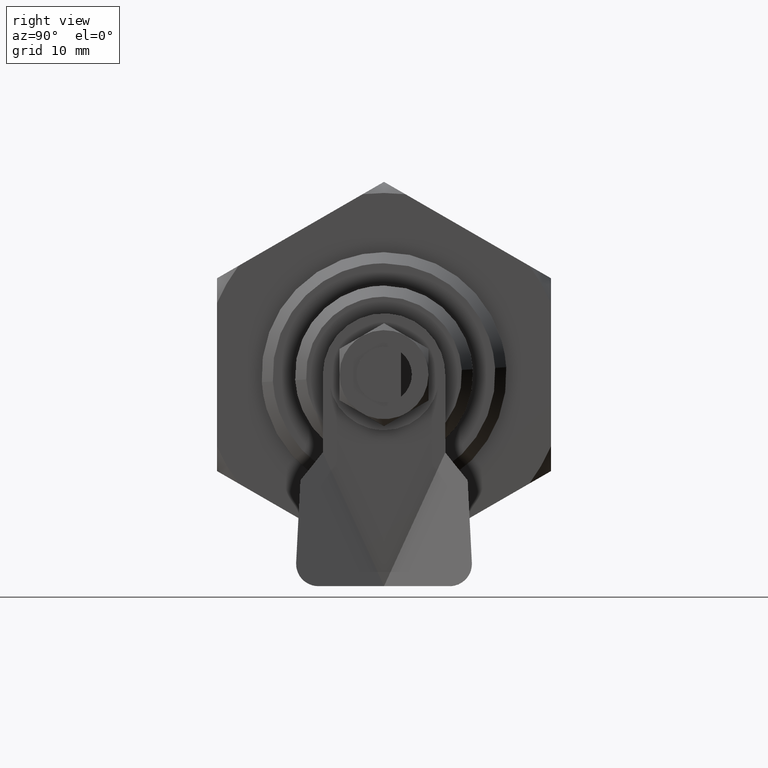
[diagram: clean part render]
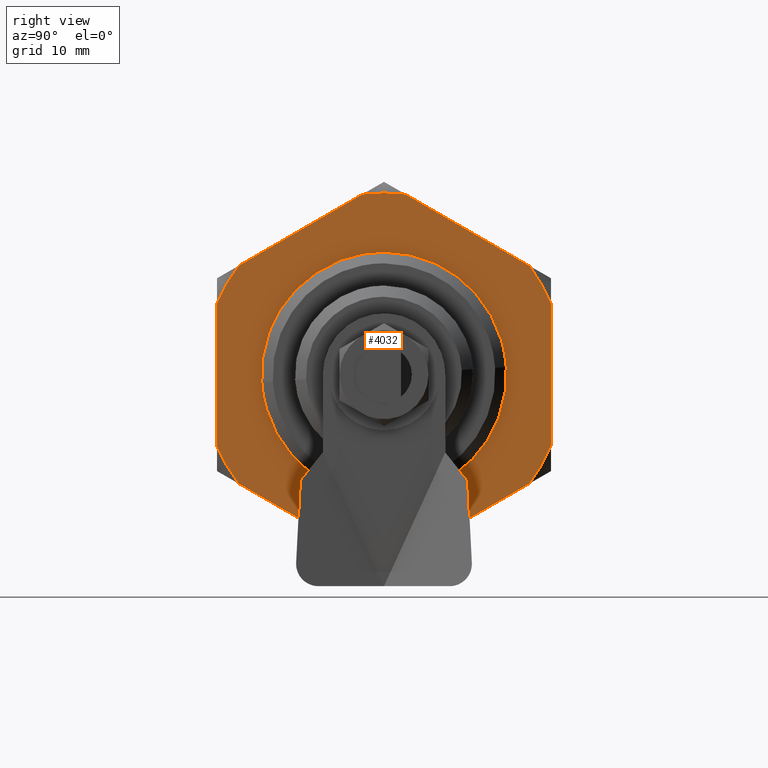
[diagram: same view with one face highlighted and labeled with its STEP entity id]
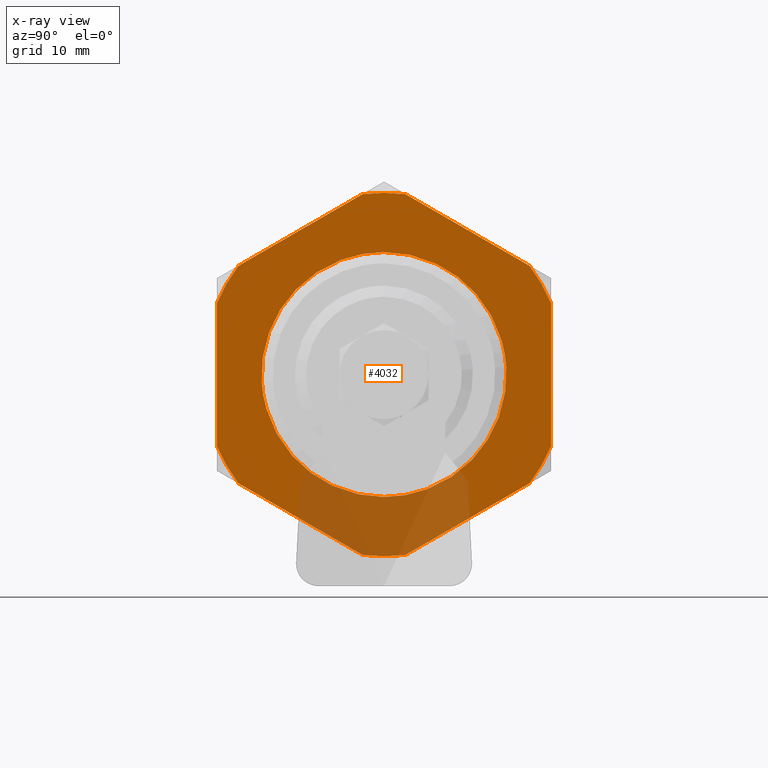
[diagram: x-ray of the same camera — body ghosted, the highlighted face saturated]
A machine part, right view. The second image highlights one B-rep face of the part: STEP entity #4032.
The next image is the same camera in x-ray: the body ghosted, the highlighted face saturated — about 19% of this face is hidden behind the body in this view.
In plain terms, the highlighted face is a freeform B-spline surface patch.
Its self-contained STEP definition (entity closure, byte-faithful):
#3215=CARTESIAN_POINT('',(9.199999999999999,15.0,-6.431095073919311));
#3216=VERTEX_POINT('',#3215);
#3284=CARTESIAN_POINT('',(9.199999999999999,15.0,6.431095073919311));
#3285=VERTEX_POINT('',#3284);
#3313=CARTESIAN_POINT('',(9.199999999999999,15.0,6.431095073919311));
#3314=CARTESIAN_POINT('',(9.199999999999999,15.0,-6.431095073919311));
#3315=QUASI_UNIFORM_CURVE('',1,(#3313,#3314),.UNSPECIFIED.,.F.,.U.);
#3316=EDGE_CURVE('',#3285,#3216,#3315,.T.);
#3339=CARTESIAN_POINT('',(9.199999999999999,13.068616042876300,-9.776004223283930));
#3340=VERTEX_POINT('',#3339);
#3341=CARTESIAN_POINT('',(9.199999999999999,14.999999999999980,-6.431095073919304));
#3342=CARTESIAN_POINT('',(9.199999999999999,14.233612775196077,-8.218630204394792));
#3343=CARTESIAN_POINT('',(9.199999999999999,13.068616042876290,-9.776004223283923));
#3351=(BOUNDED_CURVE()B_SPLINE_CURVE(2,(#3341,#3342,#3343),.UNSPECIFIED.,.F.,.U.)CURVE()GEOMETRIC_REPRESENTATION_ITEM()QUASI_UNIFORM_CURVE()RATIONAL_B_SPLINE_CURVE((1.0,0.992974117990965,1.0))REPRESENTATION_ITEM(''));
#3352=EDGE_CURVE('',#3216,#3340,#3351,.T.);
#3388=CARTESIAN_POINT('',(9.199999999999999,1.930942697099215,-16.205876839909301));
#3389=VERTEX_POINT('',#3388);
#3443=CARTESIAN_POINT('',(9.199999999999999,13.068616042876300,-9.776004223283930));
#3444=CARTESIAN_POINT('',(9.199999999999999,1.930942697099215,-16.205876839909301));
#3445=QUASI_UNIFORM_CURVE('',1,(#3443,#3444),.UNSPECIFIED.,.F.,.U.);
#3446=EDGE_CURVE('',#3340,#3389,#3445,.T.);
#3718=CARTESIAN_POINT('',(9.199999999999999,1.929470890940895,16.206052138963400));
#3719=VERTEX_POINT('',#3718);
#3745=CARTESIAN_POINT('',(9.199999999999999,13.069869099378920,9.774328906625200));
#3746=VERTEX_POINT('',#3745);
#3747=CARTESIAN_POINT('',(9.199999999999999,1.929470890940895,16.206052138963400));
#3748=CARTESIAN_POINT('',(9.199999999999999,13.069869099378920,9.774328906625200));
#3749=QUASI_UNIFORM_CURVE('',1,(#3747,#3748),.UNSPECIFIED.,.F.,.U.);
#3750=EDGE_CURVE('',#3719,#3746,#3749,.T.);
#3857=CARTESIAN_POINT('',(9.199999999999999,13.069869099378909,9.774328906625195));
#3858=CARTESIAN_POINT('',(9.199999999999999,14.234030819440079,8.217655150599459));
#3859=CARTESIAN_POINT('',(9.199999999999999,14.999999999999980,6.431095073919305));
#3867=(BOUNDED_CURVE()B_SPLINE_CURVE(2,(#3857,#3858,#3859),.UNSPECIFIED.,.F.,.U.)CURVE()GEOMETRIC_REPRESENTATION_ITEM()QUASI_UNIFORM_CURVE()RATIONAL_B_SPLINE_CURVE((1.0,0.992981700290568,1.0))REPRESENTATION_ITEM(''));
#3868=EDGE_CURVE('',#3746,#3285,#3867,.T.);
#3875=CARTESIAN_POINT('',(9.199999999999902,-16.498499941854170,-17.950926728696739));
#3876=CARTESIAN_POINT('',(9.199999999999902,16.498500746516878,-17.950926728696739));
#3877=CARTESIAN_POINT('',(9.199999999999902,-16.498499941854170,17.950927642796959));
#3878=CARTESIAN_POINT('',(9.199999999999902,16.498500746516878,17.950927642796959));
#3879=B_SPLINE_SURFACE_WITH_KNOTS('',1,1,((#3875,#3877),(#3876,#3878)),.UNSPECIFIED.,.F.,.F.,.U.,(2,2),(2,2),(0.0,32.997000688371060),(0.0,35.901854371493698),.UNSPECIFIED.);
#3880=ORIENTED_EDGE('',*,*,#3446,.F.);
#3881=ORIENTED_EDGE('',*,*,#3352,.F.);
#3882=ORIENTED_EDGE('',*,*,#3316,.F.);
#3883=ORIENTED_EDGE('',*,*,#3868,.F.);
#3884=ORIENTED_EDGE('',*,*,#3750,.F.);
#3885=CARTESIAN_POINT('',(9.199999999999999,-1.929470890940965,16.206052138963400));
#3886=VERTEX_POINT('',#3885);
#3887=CARTESIAN_POINT('',(9.199999999999999,-1.929470890940972,16.206052138963400));
#3888=CARTESIAN_POINT('',(9.199999999999999,-5.095750E-014,16.435772362437060));
#3889=CARTESIAN_POINT('',(9.199999999999999,1.929470890940892,16.206052138963400));
#3897=(BOUNDED_CURVE()B_SPLINE_CURVE(2,(#3887,#3888,#3889),.UNSPECIFIED.,.F.,.U.)CURVE()GEOMETRIC_REPRESENTATION_ITEM()QUASI_UNIFORM_CURVE()RATIONAL_B_SPLINE_CURVE((1.0,0.992986986910576,1.0))REPRESENTATION_ITEM(''));
#3898=EDGE_CURVE('',#3886,#3719,#3897,.T.);
#3899=ORIENTED_EDGE('',*,*,#3898,.F.);
#3900=CARTESIAN_POINT('',(9.199999999999999,-13.069869099378900,9.774328906625259));
#3901=VERTEX_POINT('',#3900);
#3902=CARTESIAN_POINT('',(9.199999999999999,-13.069869099378900,9.774328906625259));
#3903=CARTESIAN_POINT('',(9.199999999999999,-1.929470890940965,16.206052138963400));
#3904=QUASI_UNIFORM_CURVE('',1,(#3902,#3903),.UNSPECIFIED.,.F.,.U.);
#3905=EDGE_CURVE('',#3901,#3886,#3904,.T.);
#3906=ORIENTED_EDGE('',*,*,#3905,.F.);
#3907=CARTESIAN_POINT('',(9.199999999999999,-15.0,6.431095073919311));
#3908=VERTEX_POINT('',#3907);
#3909=CARTESIAN_POINT('',(9.199999999999999,-14.999999999999980,6.431095073919305));
#3910=CARTESIAN_POINT('',(9.199999999999999,-14.234030819440070,8.217655150599484));
#3911=CARTESIAN_POINT('',(9.199999999999999,-13.069869099378881,9.774328906625238));
#3919=(BOUNDED_CURVE()B_SPLINE_CURVE(2,(#3909,#3910,#3911),.UNSPECIFIED.,.F.,.U.)CURVE()GEOMETRIC_REPRESENTATION_ITEM()QUASI_UNIFORM_CURVE()RATIONAL_B_SPLINE_CURVE((1.0,0.992981700290567,1.0))REPRESENTATION_ITEM(''));
#3920=EDGE_CURVE('',#3908,#3901,#3919,.T.);
#3921=ORIENTED_EDGE('',*,*,#3920,.F.);
#3922=CARTESIAN_POINT('',(9.199999999999999,-15.0,-6.431095073919311));
#3923=VERTEX_POINT('',#3922);
#3924=CARTESIAN_POINT('',(9.199999999999999,-15.0,-6.431095073919311));
#3925=CARTESIAN_POINT('',(9.199999999999999,-15.0,6.431095073919311));
#3926=QUASI_UNIFORM_CURVE('',1,(#3924,#3925),.UNSPECIFIED.,.F.,.U.);
#3927=EDGE_CURVE('',#3923,#3908,#3926,.T.);
#3928=ORIENTED_EDGE('',*,*,#3927,.F.);
#3929=CARTESIAN_POINT('',(9.199999999999999,-13.068814753659000,-9.775738579991479));
#3930=VERTEX_POINT('',#3929);
#3931=CARTESIAN_POINT('',(9.199999999999999,-13.068814753658989,-9.775738579991478));
#3932=CARTESIAN_POINT('',(9.199999999999999,-14.233679064659709,-8.218475589676300));
#3933=CARTESIAN_POINT('',(9.199999999999999,-14.999999999999980,-6.431095073919310));
#3941=(BOUNDED_CURVE()B_SPLINE_CURVE(2,(#3931,#3932,#3933),.UNSPECIFIED.,.F.,.U.)CURVE()GEOMETRIC_REPRESENTATION_ITEM()QUASI_UNIFORM_CURVE()RATIONAL_B_SPLINE_CURVE((1.0,0.992975320584027,1.0))REPRESENTATION_ITEM(''));
#3942=EDGE_CURVE('',#3930,#3923,#3941,.T.);
#3943=ORIENTED_EDGE('',*,*,#3942,.F.);
#3944=CARTESIAN_POINT('',(9.199999999999999,-1.928713353193850,-16.206142312438249));
#3945=VERTEX_POINT('',#3944);
#3946=CARTESIAN_POINT('',(9.199999999999999,-1.928713353193850,-16.206142312438249));
#3947=CARTESIAN_POINT('',(9.199999999999999,-13.068814753659000,-9.775738579991479));
#3948=QUASI_UNIFORM_CURVE('',1,(#3946,#3947),.UNSPECIFIED.,.F.,.U.);
#3949=EDGE_CURVE('',#3945,#3930,#3948,.T.);
#3950=ORIENTED_EDGE('',*,*,#3949,.F.);
#3951=CARTESIAN_POINT('',(9.199999999999999,1.930942697099209,-16.205876839909280));
#3952=CARTESIAN_POINT('',(9.199999999999999,0.001130478321424,-16.435815450910258));
#3953=CARTESIAN_POINT('',(9.199999999999999,-1.928713353193845,-16.206142312438221));
#3961=(BOUNDED_CURVE()B_SPLINE_CURVE(2,(#3951,#3952,#3953),.UNSPECIFIED.,.F.,.U.)CURVE()GEOMETRIC_REPRESENTATION_ITEM()QUASI_UNIFORM_CURVE()RATIONAL_B_SPLINE_CURVE((1.0,0.992984381326540,1.0))REPRESENTATION_ITEM(''));
#3962=EDGE_CURVE('',#3389,#3945,#3961,.T.);
#3963=ORIENTED_EDGE('',*,*,#3962,.F.);
#3964=EDGE_LOOP('',(#3880,#3881,#3882,#3883,#3884,#3899,#3906,#3921,#3928,#3943,#3950,#3963));
#3965=FACE_OUTER_BOUND('',#3964,.T.);
#3966=CARTESIAN_POINT('',(9.199999999999902,0.0,-11.0));
#3967=VERTEX_POINT('',#3966);
#3968=CARTESIAN_POINT('',(9.199999999999902,-10.979483590456370,-0.671520726950584));
#3969=VERTEX_POINT('',#3968);
#3970=CARTESIAN_POINT('',(9.199999999999902,0.0,-11.0));
#3971=CARTESIAN_POINT('',(9.199999999999903,-10.347779207226814,-10.999999999999757));
#3972=CARTESIAN_POINT('',(9.199999999999902,-10.979483590456374,-0.671520726950584));
#3980=(BOUNDED_CURVE()B_SPLINE_CURVE(2,(#3970,#3971,#3972),.UNSPECIFIED.,.F.,.U.)B_SPLINE_CURVE_WITH_KNOTS((3,3),(0.0,0.239333169809739),.UNSPECIFIED.)CURVE()GEOMETRIC_REPRESENTATION_ITEM()RATIONAL_B_SPLINE_CURVE((1.0,0.719603750102396,0.976072486530850))REPRESENTATION_ITEM(''));
#3981=EDGE_CURVE('',#3967,#3969,#3980,.T.);
#3982=ORIENTED_EDGE('',*,*,#3981,.T.);
#3983=CARTESIAN_POINT('',(9.199999999999902,0.0,11.0));
#3984=VERTEX_POINT('',#3983);
#3985=CARTESIAN_POINT('',(9.199999999999902,-10.979483590456374,-0.671520726950584));
#3986=CARTESIAN_POINT('',(9.199999999999902,-10.999999999992172,-0.336073773801307));
#3987=CARTESIAN_POINT('',(9.199999999999902,-10.999999999992291,4.713226E-013));
#3988=CARTESIAN_POINT('',(9.199999999999902,-10.999999999996263,11.000000000000229));
#3989=CARTESIAN_POINT('',(9.199999999999902,0.0,11.0));
#3997=(BOUNDED_CURVE()B_SPLINE_CURVE(2,(#3985,#3986,#3987,#3988,#3989),.UNSPECIFIED.,.F.,.U.)B_SPLINE_CURVE_WITH_KNOTS((3,2,3),(0.239333169809739,0.250000000000000,0.500000000000000),.UNSPECIFIED.)CURVE()GEOMETRIC_REPRESENTATION_ITEM()RATIONAL_B_SPLINE_CURVE((0.976072486530850,0.987503031084152,1.0,0.707106781186548,1.0))REPRESENTATION_ITEM(''));
#3998=EDGE_CURVE('',#3969,#3984,#3997,.T.);
#3999=ORIENTED_EDGE('',*,*,#3998,.T.);
#4000=CARTESIAN_POINT('',(9.199999999999900,10.979483590456370,0.671520726950585));
#4001=VERTEX_POINT('',#4000);
#4002=CARTESIAN_POINT('',(9.199999999999902,0.0,11.0));
#4003=CARTESIAN_POINT('',(9.199999999999902,10.347779207226809,10.999999999999755));
#4004=CARTESIAN_POINT('',(9.199999999999900,10.979483590456365,0.671520726950585));
#4012=(BOUNDED_CURVE()B_SPLINE_CURVE(2,(#4002,#4003,#4004),.UNSPECIFIED.,.F.,.U.)B_SPLINE_CURVE_WITH_KNOTS((3,3),(0.500000000000000,0.739333169809739),.UNSPECIFIED.)CURVE()GEOMETRIC_REPRESENTATION_ITEM()RATIONAL_B_SPLINE_CURVE((1.0,0.719603750102396,0.976072486530850))REPRESENTATION_ITEM(''));
#4013=EDGE_CURVE('',#3984,#4001,#4012,.T.);
#4014=ORIENTED_EDGE('',*,*,#4013,.T.);
#4015=CARTESIAN_POINT('',(9.199999999999900,10.979483590456365,0.671520726950585));
#4016=CARTESIAN_POINT('',(9.199999999999900,10.999999999992173,0.336073773801307));
#4017=CARTESIAN_POINT('',(9.199999999999898,10.999999999992291,-4.736927E-013));
#4018=CARTESIAN_POINT('',(9.199999999999902,10.999999999996263,-11.000000000000229));
#4019=CARTESIAN_POINT('',(9.199999999999902,0.0,-11.0));
#4027=(BOUNDED_CURVE()B_SPLINE_CURVE(2,(#4015,#4016,#4017,#4018,#4019),.UNSPECIFIED.,.F.,.U.)B_SPLINE_CURVE_WITH_KNOTS((3,2,3),(0.739333169809739,0.750000000000000,1.0),.UNSPECIFIED.)CURVE()GEOMETRIC_REPRESENTATION_ITEM()RATIONAL_B_SPLINE_CURVE((0.976072486530850,0.987503031084152,1.0,0.707106781186548,1.0))REPRESENTATION_ITEM(''));
#4028=EDGE_CURVE('',#4001,#3967,#4027,.T.);
#4029=ORIENTED_EDGE('',*,*,#4028,.T.);
#4030=EDGE_LOOP('',(#3982,#3999,#4014,#4029));
#4031=FACE_BOUND('',#4030,.T.);
#4032=ADVANCED_FACE('',(#3965,#4031),#3879,.T.);